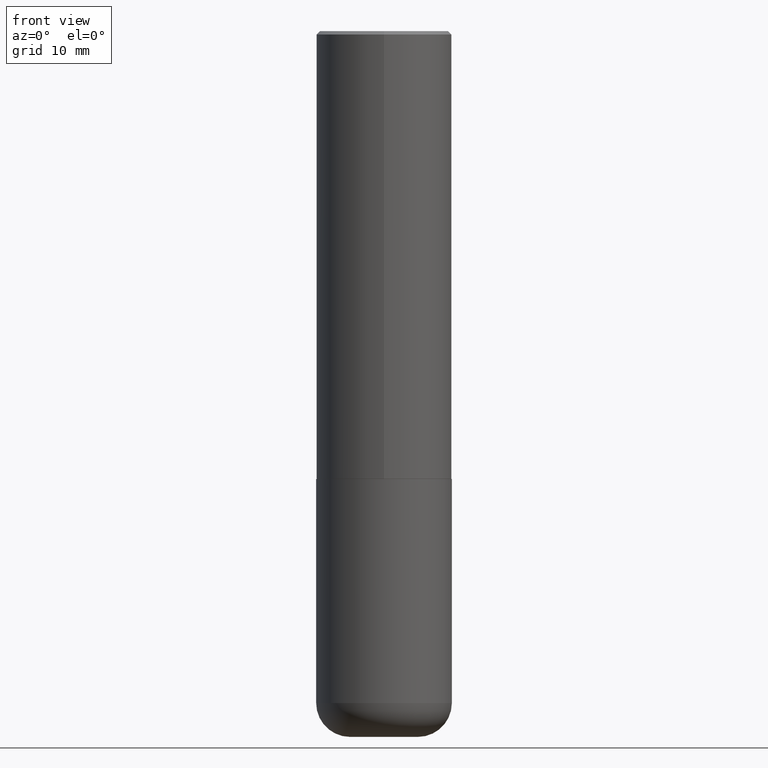
[diagram: clean part render]
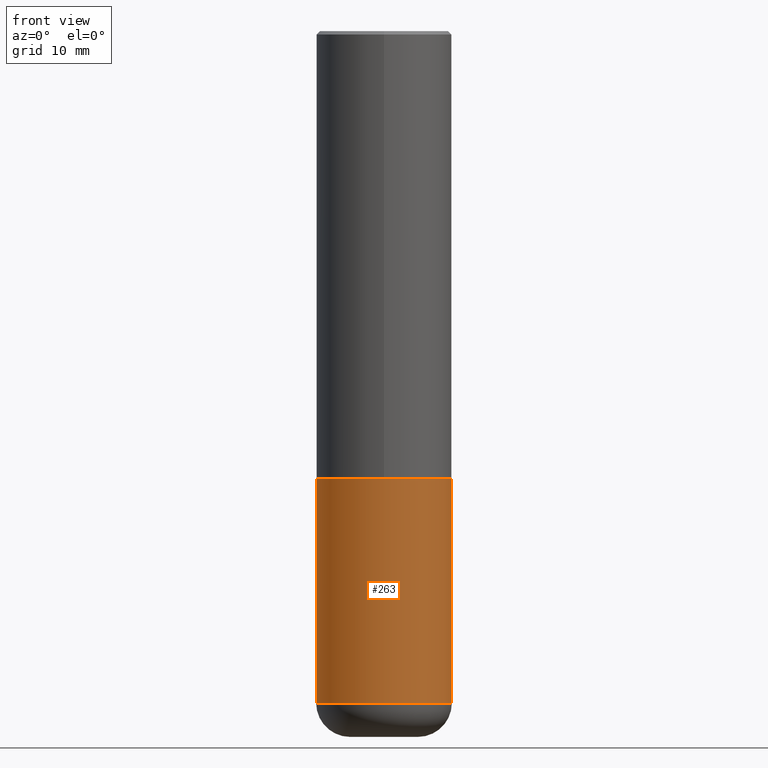
[diagram: same view with one face highlighted and labeled with its STEP entity id]
A machine part, front view. The second image highlights one B-rep face of the part: STEP entity #263.
In plain terms, the highlighted cylindrical surface (partial cylindrical patch) has radius 10 mm, axis along (-0, 0, 1).
Its self-contained STEP definition (entity closure, byte-faithful):
#14 = DIRECTION ( 'NONE',  ( -2.445468806185136877E-29, 3.491481338843145188E-15, 1.000000000000000000 ) ) ;
#57 = DIRECTION ( 'NONE',  ( -2.445468806185136597E-29, 3.491481338843145583E-15, 1.000000000000000000 ) ) ;
#61 = CARTESIAN_POINT ( 'NONE',  ( 6.354306145991459756E-29, -9.072265110850031044E-15, -2.598400000000000265 ) ) ;
#75 = LINE ( 'NONE', #205, #386 ) ;
#84 = DIRECTION ( 'NONE',  ( 1.000000000000000000, -6.982962677686267499E-15, 0.000000000000000000 ) ) ;
#87 = DIRECTION ( 'NONE',  ( 1.000000000000000000, -6.982962677686265922E-15, 4.876176775795935793E-29 ) ) ;
#115 = EDGE_CURVE ( 'NONE', #380, #189, #75, .T. ) ;
#118 = ORIENTED_EDGE ( 'NONE', *, *, #136, .F. ) ;
#126 = VERTEX_POINT ( 'NONE', #239 ) ;
#136 = EDGE_CURVE ( 'NONE', #350, #126, #139, .T. ) ;
#139 = LINE ( 'NONE', #171, #267 ) ;
#143 = DIRECTION ( 'NONE',  ( -2.445468806185136597E-29, 3.491481338843145583E-15, 1.000000000000000000 ) ) ;
#158 = CARTESIAN_POINT ( 'NONE',  ( -0.3936999999999999389, -1.081099091558753178E-14, -3.897600000000000620 ) ) ;
#159 = ORIENTED_EDGE ( 'NONE', *, *, #196, .T. ) ;
#169 = AXIS2_PLACEMENT_3D ( 'NONE', #251, #318, #317 ) ;
#171 = CARTESIAN_POINT ( 'NONE',  ( -0.3937000000000000499, 2.797406750687514786E-15, -1.936584745033356735E-29 ) ) ;
#189 = VERTEX_POINT ( 'NONE', #272 ) ;
#190 = AXIS2_PLACEMENT_3D ( 'NONE', #61, #143, #84 ) ;
#196 = EDGE_CURVE ( 'NONE', #350, #380, #242, .T. ) ;
#205 = CARTESIAN_POINT ( 'NONE',  ( 0.3937000000000000499, -2.749192406205083217E-15, 1.919750796630860172E-29 ) ) ;
#210 = EDGE_CURVE ( 'NONE', #126, #189, #346, .T. ) ;
#213 = CYLINDRICAL_SURFACE ( 'NONE', #231, 0.3937000000000000499 ) ;
#231 = AXIS2_PLACEMENT_3D ( 'NONE', #255, #57, #87 ) ;
#239 = CARTESIAN_POINT ( 'NONE',  ( -0.3937000000000000499, -8.542924637875024414E-15, -2.598400000000000265 ) ) ;
#242 = CIRCLE ( 'NONE', #169, 0.3937000000000000499 ) ;
#244 = DIRECTION ( 'NONE',  ( -2.445468806185136877E-29, 3.491481338843145188E-15, 1.000000000000000000 ) ) ;
#251 = CARTESIAN_POINT ( 'NONE',  ( 9.531459218987190195E-29, -1.360839766627504578E-14, -3.897600000000000620 ) ) ;
#255 = CARTESIAN_POINT ( 'NONE',  ( 0.000000000000000000, 0.000000000000000000, 0.000000000000000000 ) ) ;
#261 = ORIENTED_EDGE ( 'NONE', *, *, #210, .F. ) ;
#263 = ADVANCED_FACE ( 'NONE', ( #406 ), #213, .T. ) ;
#267 = VECTOR ( 'NONE', #244, 39.37007874015748143 ) ;
#272 = CARTESIAN_POINT ( 'NONE',  ( 0.3937000000000000499, -1.182145751705511584E-14, -2.598400000000000265 ) ) ;
#316 = EDGE_LOOP ( 'NONE', ( #118, #159, #418, #261 ) ) ;
#317 = DIRECTION ( 'NONE',  ( 1.000000000000000000, -6.982962677686267499E-15, 0.000000000000000000 ) ) ;
#318 = DIRECTION ( 'NONE',  ( -2.445468806185136597E-29, 3.491481338843145583E-15, 1.000000000000000000 ) ) ;
#346 = CIRCLE ( 'NONE', #190, 0.3937000000000000499 ) ;
#350 = VERTEX_POINT ( 'NONE', #158 ) ;
#380 = VERTEX_POINT ( 'NONE', #387 ) ;
#386 = VECTOR ( 'NONE', #14, 39.37007874015748143 ) ;
#387 = CARTESIAN_POINT ( 'NONE',  ( 0.3936999999999999389, -1.635759007248013057E-14, -3.897600000000000620 ) ) ;
#406 = FACE_OUTER_BOUND ( 'NONE', #316, .T. ) ;
#418 = ORIENTED_EDGE ( 'NONE', *, *, #115, .T. ) ;